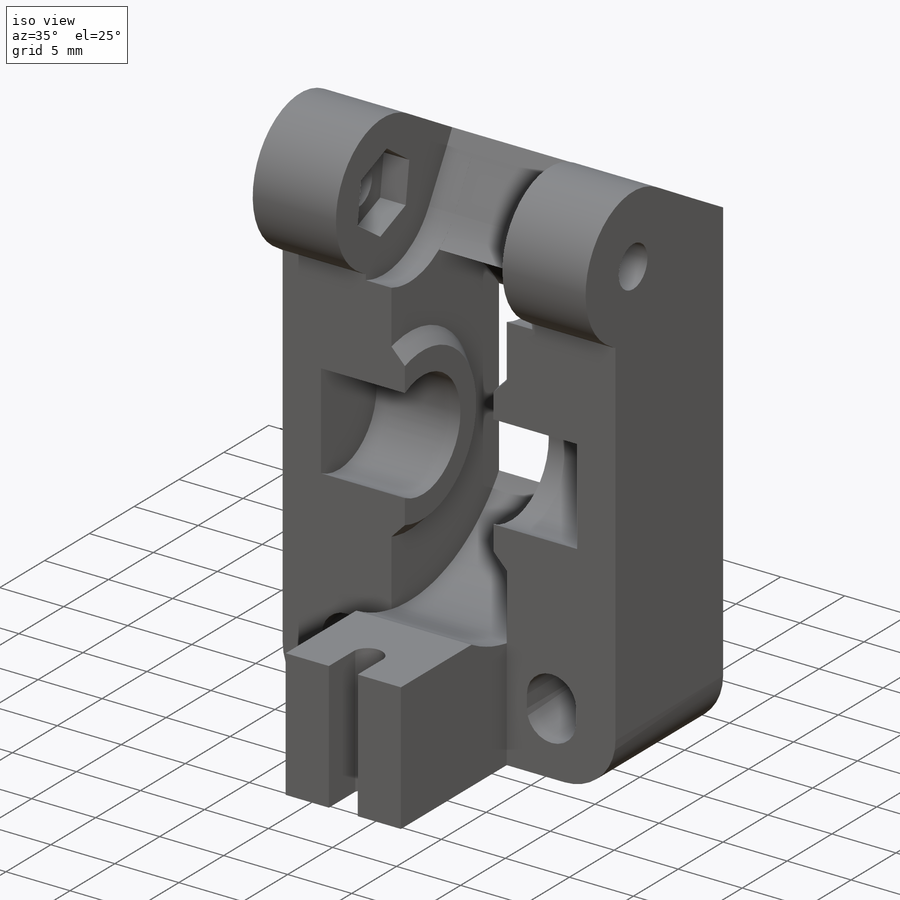
[diagram: iso view]
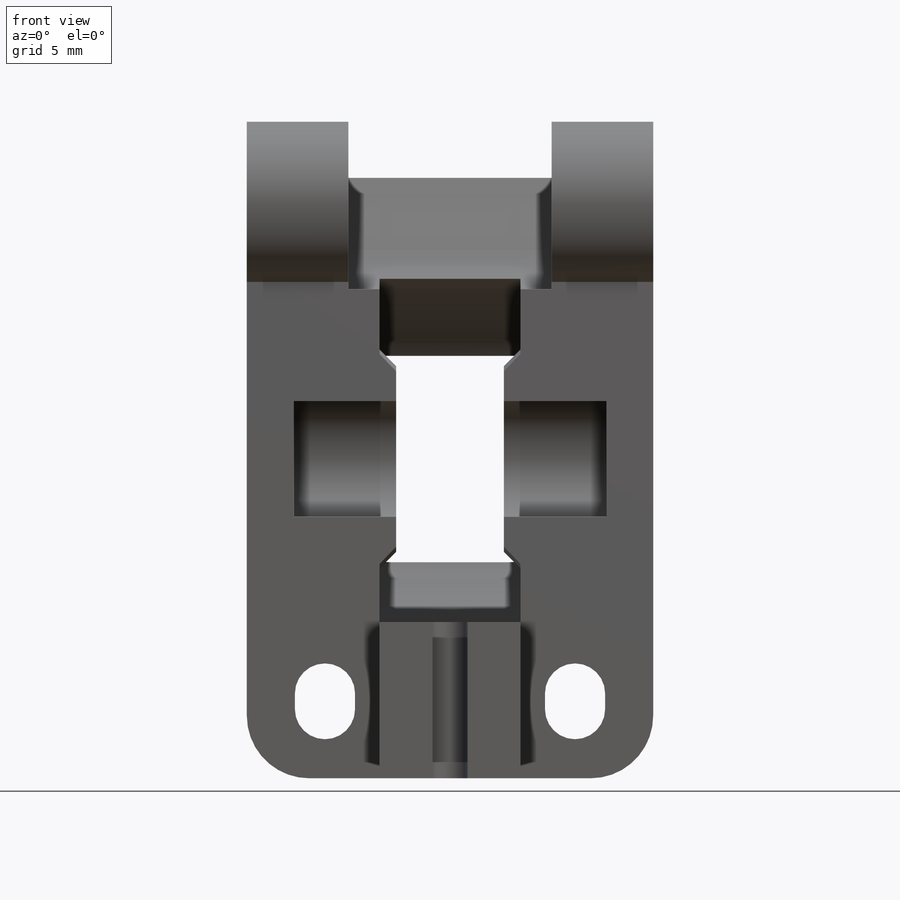
[diagram: front view]
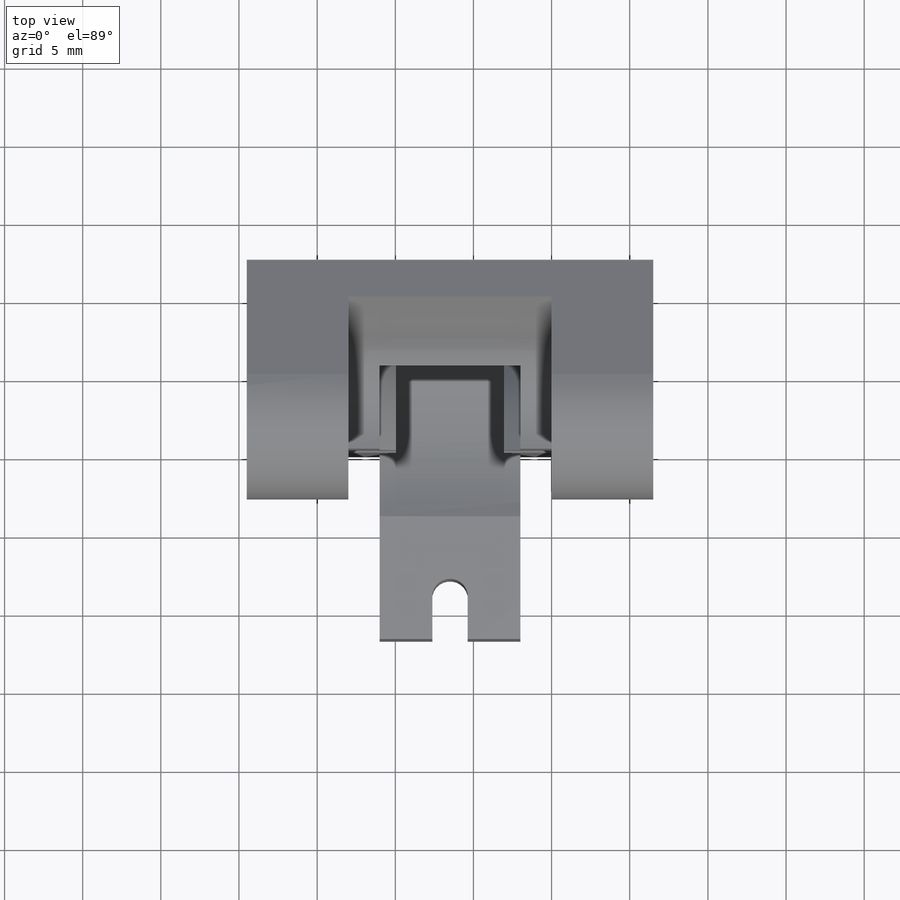
[diagram: top view]
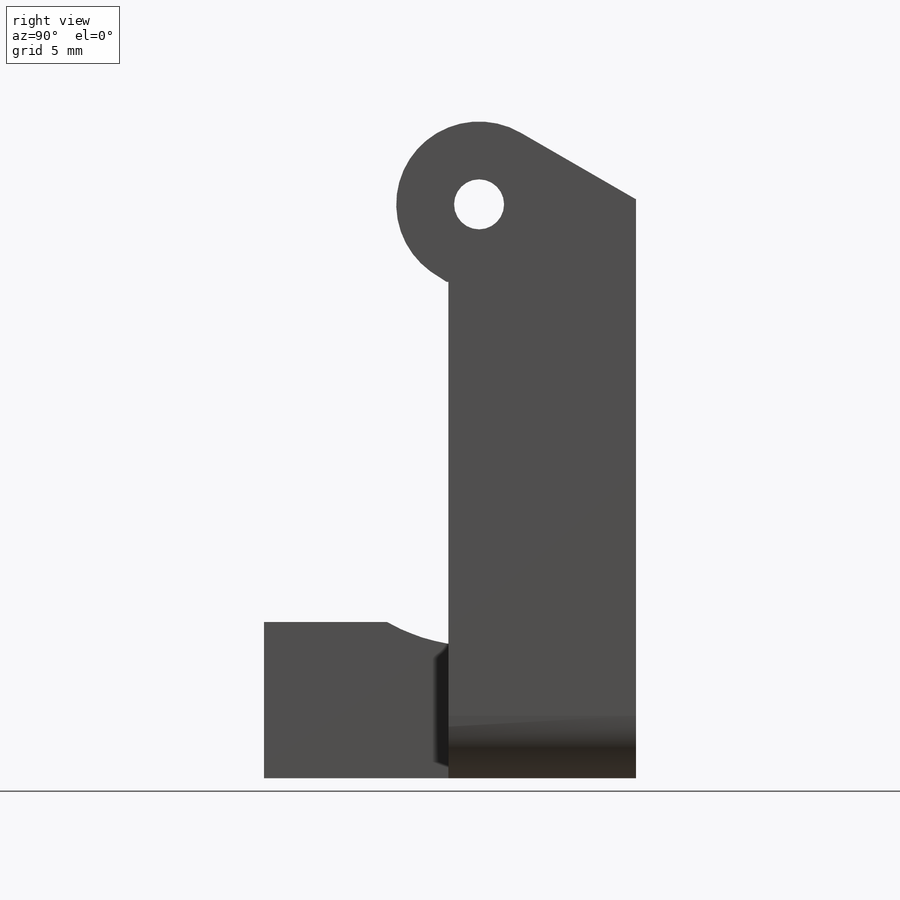
[diagram: right view]
SOLIDWORKS PART (.sldprt)
format: sldprt  version: not decoded by parser v0  size: 517,120 bytes
history: native  units: mm
features: sketch x13, extrude x6, cut_extrude x3, hole x2, material x1, plane x1, fillet x1, mirror x1 (+13 scaffold rows collapsed)
feature tree (41):
  scaffold x13  (default folders/planes/origin — collapsed)
  material  "Material <not specified>"
  plane  "Plane1"  Offset=2mm
  sketch  "Sketch1"  dims[D1=~0.004547mm D2=~3.102726mm D3=~4.97705mm D4=3.2464mm D5=~10.035299mm D6=10.0423mm D7=10.0423mm D8=~3.102726mm]
  extrude  "Boss-Extrude1"  Depth=4.5mm
  sketch  "Sketch2"  dims[D1=~0.004508mm D2=~3.107384mm D3=~4.981589mm D4=~12.004508mm D5=~3.246122mm D6=~5.118957mm D7=~5.782476mm D8=~9.931246mm D9=37.0714mm]
  extrude  "Boss-Extrude2"  Depth=8.5mm
  sketch  "Sketch3"  dims[c1.D1=~5.300411mm c1.D2=~1.961988mm c1.D3=~4.612192mm c1.D4=~11.955146mm c1.D5=~12.00002mm c1.D6=~0.116436mm c1.D7=~1.15978mm c1.D8=31.7596mm c1.D9=32.437mm c1.D10=~36.720564mm c1.D11=37.0714mm c1.D12=~41.310854mm c2.D9=32.437mm]
  extrude  "Boss-Extrude6"  Depth=6.5mm
  sketch  "Sketch4"  dims[c1.D1=~6.998512mm c1.D2=~1.989944mm c1.D3=~13.719284mm c1.D4=~20.428926mm c1.D5=~27.138569mm c2.D3=~13.719284mm c2.D4=~20.428926mm]
  extrude  "Boss-Extrude4"  Depth=1.05mm
  sketch  "Sketch19"  dims[D1=2.686mm]
  extrude  "Boss-Extrude8"  [1 undecoded]
  sketch  "Sketch5"  dims[c1.D1=~4.117299mm c1.D2=~4.515457mm c1.D3=~6.537009mm c1.D4=~7.333264mm c1.D5=~9.354816mm c1.D6=~9.752974mm c1.D7=~1.937066mm c1.D8=~3.10424mm c1.D9=~3.793835mm c1.D10=~6.128092mm c1.D11=~6.817687mm c1.D12=~7.984861mm c2.D1=6.01mm c2.D2=5.4mm c2.D3=~3.006031mm c3.D3=~0.419594deg c4.D3=~3.109545mm c5.D3=~2.517259deg c6.D3=~3.109545mm]
  cut_extrude  "Cut-Extrude1"  Depth=2mm
  hole  "M3 Clearance Hole2"  Diameter=3.2mm Depth=4.500025mm
  sketch  "Sketch17"
  sketch  "Sketch16"  dims[hole-wizard template sketch: 60 standard entries collapsed; hole parameters kept: c18.Thru Hole Depth=~4.500025mm]
  hole  "M8 Clearance Hole1"  Diameter=8.408mm Depth=6.55mm
  sketch  "Sketch9"
  sketch  "Sketch8"  dims[hole-wizard template sketch: 46 standard entries collapsed; hole parameters kept: c15.Hole Dia.=8.408mm c15.Hole Depth=6.55mm c15.D3=~14.816244mm c15.Drill Angle=180.0deg]
  sketch  "Sketch10"  dims[D1=13.8209mm D2=23.8mm D3=7.8642mm]
  extrude  "Boss-Extrude5"  Depth=4.5mm
  sketch  "Sketch11"  dims[D1=~3.85071mm D2=1.125mm D3=~2.937099mm]
  cut_extrude  "Cut-Extrude2"  [1 undecoded]
  sketch  "Sketch12"  dims[c1.D1=1.925mm c1.D2=1.925mm c1.D4=1.925mm c2.D2=1.0mm c2.D3=3.075mm c2.D4=4.425mm]
  cut_extrude  "Cut-Extrude3"  [1 undecoded]
  fillet  "Fillet1"  Radius=4mm
  mirror  "Mirror2"
decode coverage: 20 of 26 modeling features carry decoded parameters
note: ~ marks probable driven/reference dimensions
note: 3 parameter values undecoded
summary: no parameter record found for 3 features
note: suppression state not decoded; provenance and decode notes live in map.json
